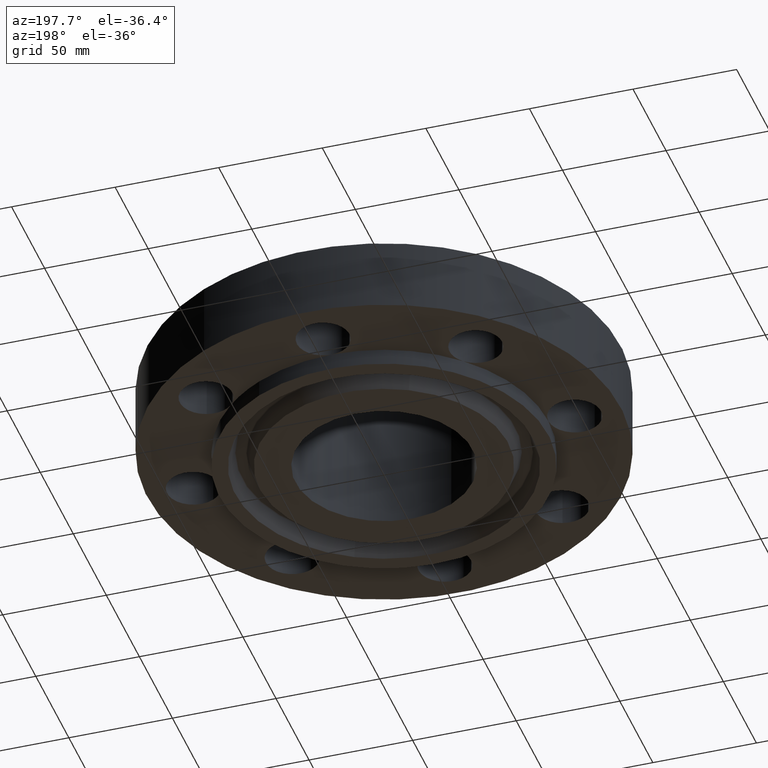
[diagram: clean part render]
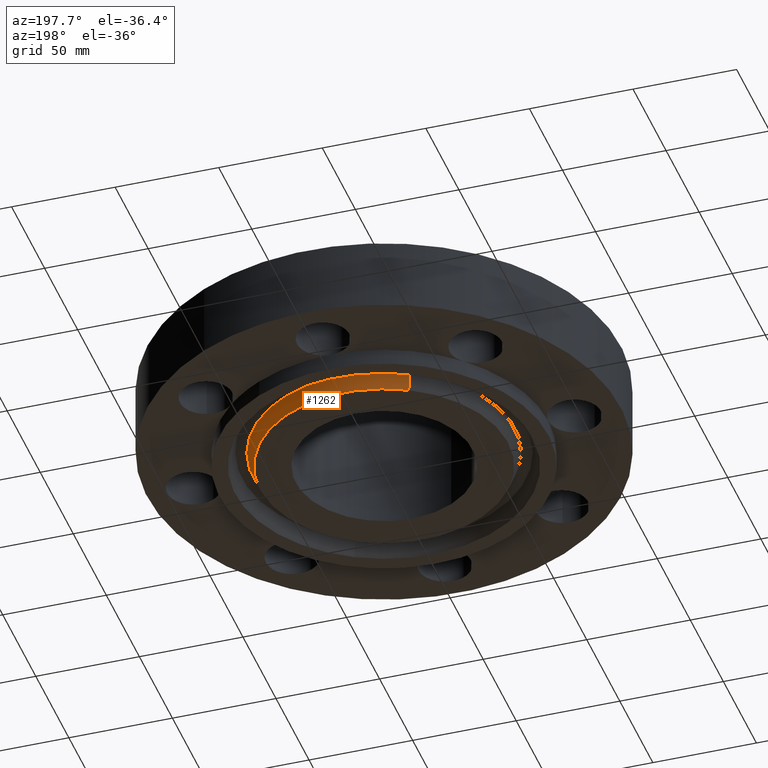
[diagram: same view with one face highlighted and labeled with its STEP entity id]
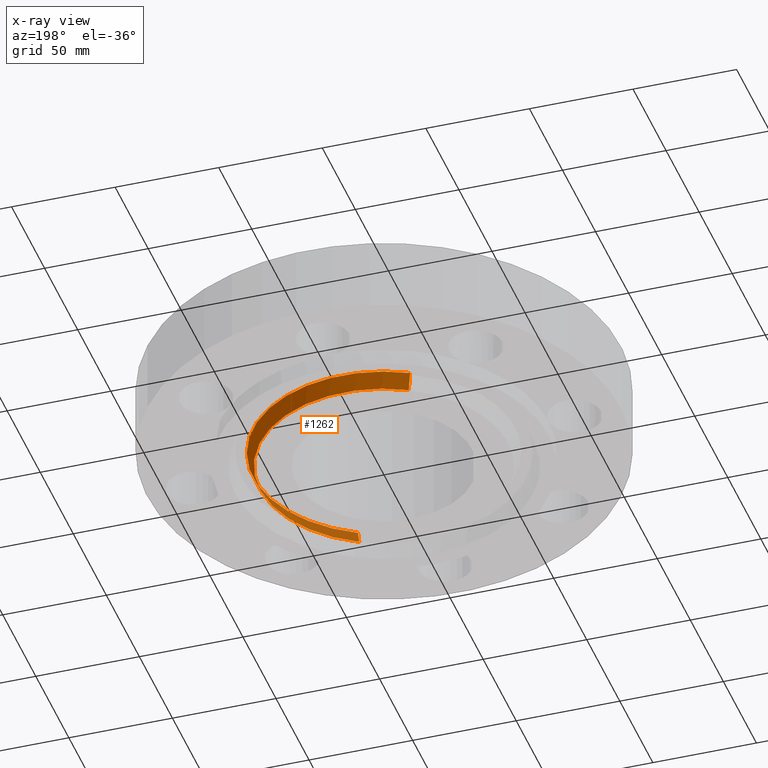
[diagram: x-ray of the same camera — body ghosted, the highlighted face saturated]
A machine part, auxiliary view. The second image highlights one B-rep face of the part: STEP entity #1262.
The next image is the same camera in x-ray: the body ghosted, the highlighted face saturated — about 0% of this face is hidden behind the body in this view.
In plain terms, the highlighted conical surface has half-angle 23 deg.
Its self-contained STEP definition (entity closure, byte-faithful):
#1068=AXIS2_PLACEMENT_3D('Circle Axis2P3D',#1066,#1067,$) ;
#1212=AXIS2_PLACEMENT_3D('Circle Axis2P3D',#1210,#1211,$) ;
#1244=AXIS2_PLACEMENT_3D('Cone Axis2P3D',#1241,#1242,#1243) ;
#1066=CARTESIAN_POINT('Axis2P3D Location',(-5.59482469102E-016,5.59482469102E-016,-0.313000000001)) ;
#1070=CARTESIAN_POINT('Vertex',(-1.13120455834,2.07065605479,-0.313000000001)) ;
#1072=CARTESIAN_POINT('Vertex',(1.13120455834,-2.07065605479,-0.313000000001)) ;
#1207=CARTESIAN_POINT('Vertex',(1.19105768193,-2.18021646263,-0.0188873350169)) ;
#1210=CARTESIAN_POINT('Axis2P3D Location',(0.,0.,-0.0188873350169)) ;
#1214=CARTESIAN_POINT('Vertex',(-1.19105768193,2.18021646263,-0.0188873350169)) ;
#1241=CARTESIAN_POINT('Axis2P3D Location',(0.,0.,-0.373000000001)) ;
#1246=CARTESIAN_POINT('Line Origine',(-1.16113112014,2.12543625871,-0.165943667509)) ;
#1251=CARTESIAN_POINT('Line Origine',(1.16113112014,-2.12543625871,-0.165943667509)) ;
#1067=DIRECTION('Axis2P3D Direction',(0.,0.,-0.0393700787402)) ;
#1211=DIRECTION('Axis2P3D Direction',(0.,0.,0.0393700787402)) ;
#1242=DIRECTION('Axis2P3D Direction',(0.,0.,0.0393700787402)) ;
#1243=DIRECTION('Axis2P3D XDirection',(-0.0188750212049,0.0345504945626,0.)) ;
#1247=DIRECTION('Vector Direction',(-0.00737505833565,0.0134999537303,0.0362403485611)) ;
#1252=DIRECTION('Vector Direction',(0.00737505833565,-0.0134999537303,0.0362403485611)) ;
#1248=VECTOR('Line Direction',#1247,0.0393700787402) ;
#1253=VECTOR('Line Direction',#1252,0.0393700787402) ;
#1257=ORIENTED_EDGE('',*,*,#1250,.F.) ;
#1258=ORIENTED_EDGE('',*,*,#1216,.F.) ;
#1259=ORIENTED_EDGE('',*,*,#1255,.T.) ;
#1260=ORIENTED_EDGE('',*,*,#1074,.F.) ;
#1262=ADVANCED_FACE('PartBody',(#1261),#1245,.T.) ;
#1069=CIRCLE('generated circle',#1068,2.35950000001) ;
#1213=CIRCLE('generated circle',#1212,2.48434341942) ;
#1245=CONICAL_SURFACE('Cone',#1244,2.33403151104,0.401425727959) ;
#1074=EDGE_CURVE('',#1071,#1073,#1069,.T.) ;
#1216=EDGE_CURVE('',#1208,#1215,#1213,.T.) ;
#1250=EDGE_CURVE('',#1215,#1071,#1249,.F.) ;
#1255=EDGE_CURVE('',#1208,#1073,#1254,.F.) ;
#1256=EDGE_LOOP('',(#1257,#1258,#1259,#1260)) ;
#1261=FACE_OUTER_BOUND('',#1256,.T.) ;
#1249=LINE('Line',#1246,#1248) ;
#1254=LINE('Line',#1251,#1253) ;
#1071=VERTEX_POINT('',#1070) ;
#1073=VERTEX_POINT('',#1072) ;
#1208=VERTEX_POINT('',#1207) ;
#1215=VERTEX_POINT('',#1214) ;